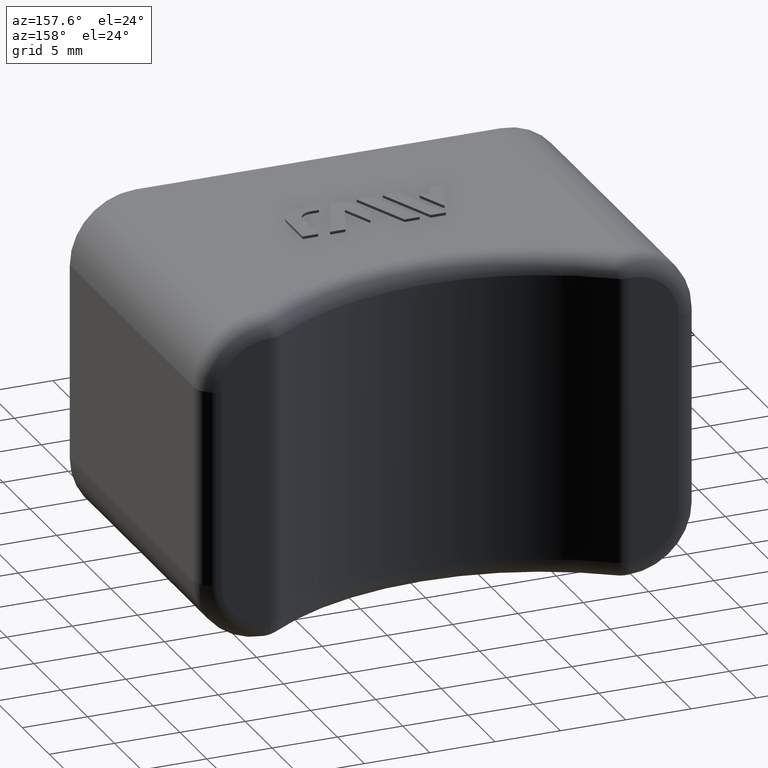
[diagram: clean part render]
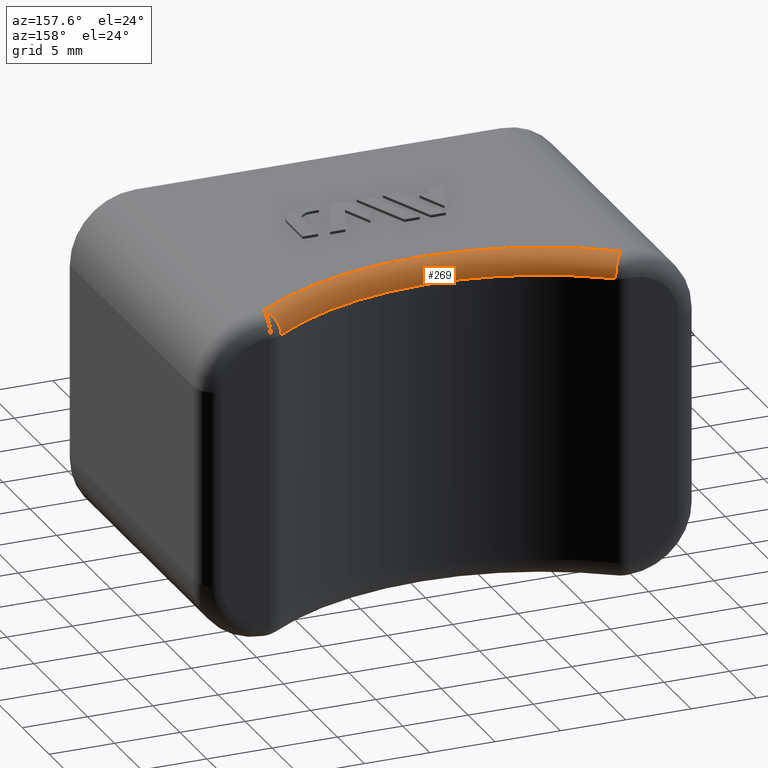
[diagram: same view with one face highlighted and labeled with its STEP entity id]
A machine part, auxiliary view. The second image highlights one B-rep face of the part: STEP entity #269.
In plain terms, the highlighted toroidal blend (fillet) surface has major radius 23.1 mm and minor (blend) radius 1.5 mm.
Its self-contained STEP definition (entity closure, byte-faithful):
#269 = ADVANCED_FACE( '', ( #748 ), #749, .T. );
#748 = FACE_OUTER_BOUND( '', #1284, .T. );
#749 = TOROIDAL_SURFACE( '', #1285, 23.1000000000000, 1.50000000000000 );
#1284 = EDGE_LOOP( '', ( #2983, #2984, #2985, #2986 ) );
#1285 = AXIS2_PLACEMENT_3D( '', #2987, #2988, #2989 );
#2983 = ORIENTED_EDGE( '', *, *, #4008, .T. );
#2984 = ORIENTED_EDGE( '', *, *, #3992, .F. );
#2985 = ORIENTED_EDGE( '', *, *, #4010, .F. );
#2986 = ORIENTED_EDGE( '', *, *, #3612, .F. );
#2987 = CARTESIAN_POINT( '', ( 0.000000000000000, 41.6000000000000, 11.0000000000000 ) );
#2988 = DIRECTION( '', ( 0.000000000000000, 0.000000000000000, -1.00000000000000 ) );
#2989 = DIRECTION( '', ( -1.00000000000000, 0.000000000000000, 0.000000000000000 ) );
#3612 = EDGE_CURVE( '', #4434, #4435, #4436, .T. );
#3992 = EDGE_CURVE( '', #4504, #5015, #5016, .F. );
#4008 = EDGE_CURVE( '', #4434, #5015, #5038, .F. );
#4010 = EDGE_CURVE( '', #4435, #4504, #5040, .T. );
#4434 = VERTEX_POINT( '', #5666 );
#4435 = VERTEX_POINT( '', #5667 );
#4436 = CIRCLE( '', #5668, 23.1000000000000 );
#4504 = VERTEX_POINT( '', #5762 );
#5015 = VERTEX_POINT( '', #6520 );
#5016 = CIRCLE( '', #6521, 21.6000000000000 );
#5038 = CIRCLE( '', #6549, 1.50000000000000 );
#5040 = CIRCLE( '', #6551, 1.50000000000000 );
#5666 = CARTESIAN_POINT( '', ( 13.6985400681971, 23.0000000000000, 12.5000000000000 ) );
#5667 = CARTESIAN_POINT( '', ( -13.6985400681971, 23.0000000000000, 12.5000000000000 ) );
#5668 = AXIS2_PLACEMENT_3D( '', #6862, #6863, #6864 );
#5762 = CARTESIAN_POINT( '', ( -12.8090244793531, 24.2077922077922, 11.0000000000000 ) );
#6520 = CARTESIAN_POINT( '', ( 12.8090244793531, 24.2077922077922, 11.0000000000000 ) );
#6521 = AXIS2_PLACEMENT_3D( '', #7456, #7457, #7458 );
#6549 = AXIS2_PLACEMENT_3D( '', #7492, #7493, #7494 );
#6551 = AXIS2_PLACEMENT_3D( '', #7498, #7499, #7500 );
#6862 = CARTESIAN_POINT( '', ( 0.000000000000000, 41.6000000000000, 12.5000000000000 ) );
#6863 = DIRECTION( '', ( 0.000000000000000, 0.000000000000000, -1.00000000000000 ) );
#6864 = DIRECTION( '', ( -1.00000000000000, 0.000000000000000, 0.000000000000000 ) );
#7456 = CARTESIAN_POINT( '', ( 0.000000000000000, 41.6000000000000, 11.0000000000000 ) );
#7457 = DIRECTION( '', ( 0.000000000000000, 0.000000000000000, -1.00000000000000 ) );
#7458 = DIRECTION( '', ( -1.00000000000000, 0.000000000000000, 0.000000000000000 ) );
#7492 = CARTESIAN_POINT( '', ( 13.6985400681970, 23.0000000000000, 11.0000000000000 ) );
#7493 = DIRECTION( '', ( 0.805194805194806, 0.593010392562642, -5.73815046459279E-014 ) );
#7494 = DIRECTION( '', ( -0.593010392562642, 0.805194805194806, 0.000000000000000 ) );
#7498 = CARTESIAN_POINT( '', ( -13.6985400681971, 23.0000000000000, 11.0000000000000 ) );
#7499 = DIRECTION( '', ( -0.805194805194772, 0.593010392562688, 0.000000000000000 ) );
#7500 = DIRECTION( '', ( -0.593010392562688, -0.805194805194772, 0.000000000000000 ) );